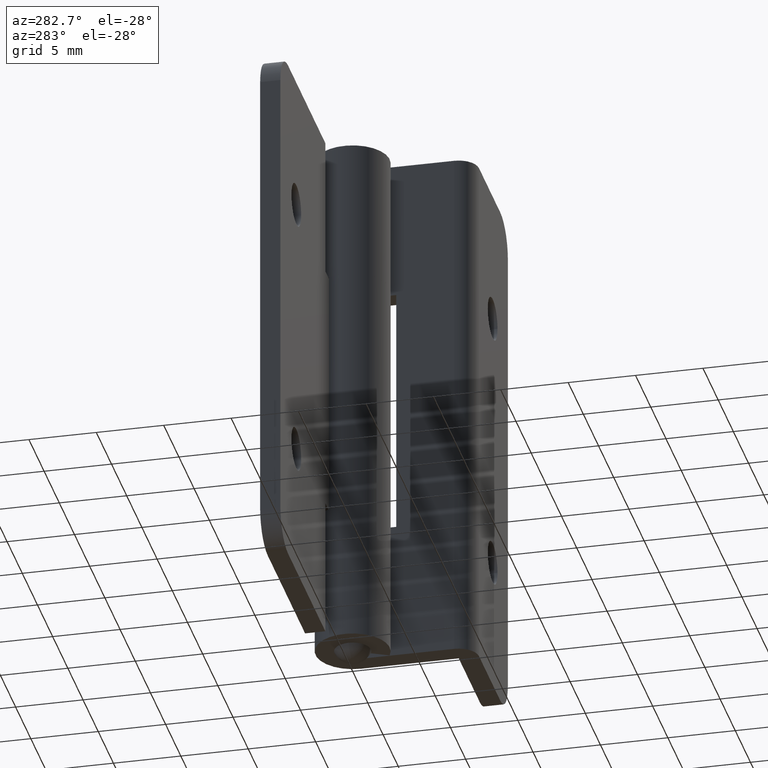
[diagram: clean part render]
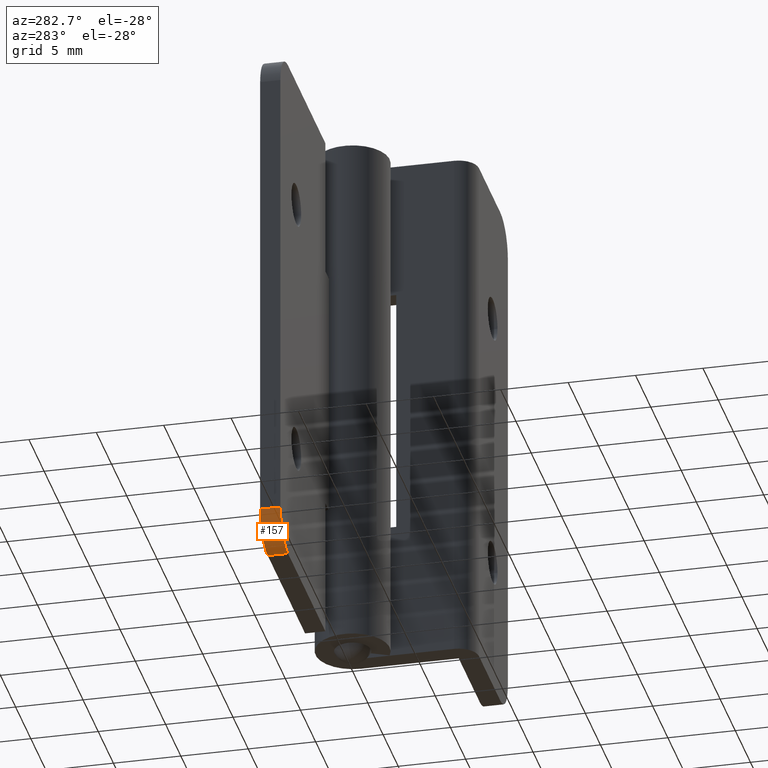
[diagram: same view with one face highlighted and labeled with its STEP entity id]
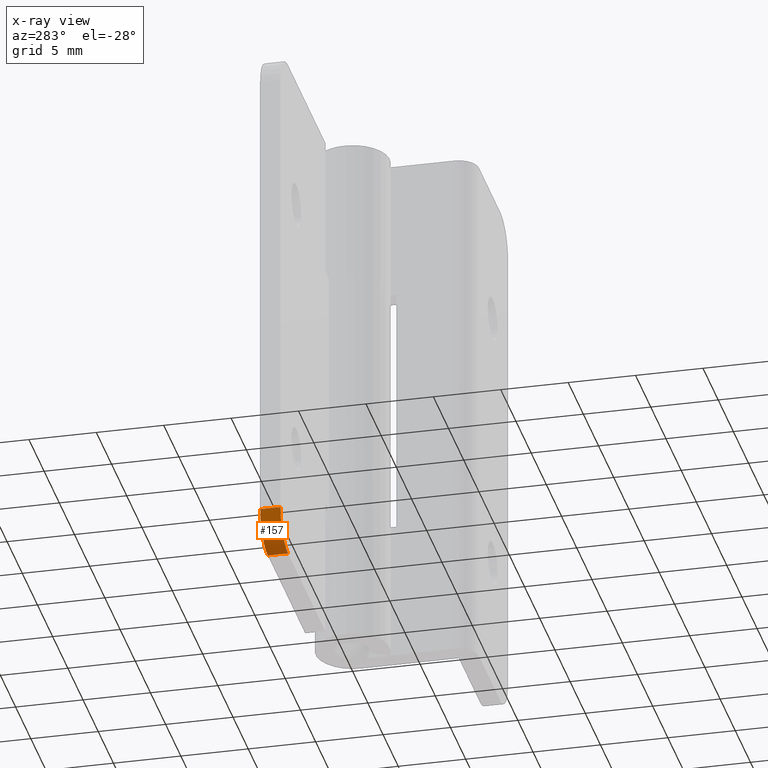
[diagram: x-ray of the same camera — body ghosted, the highlighted face saturated]
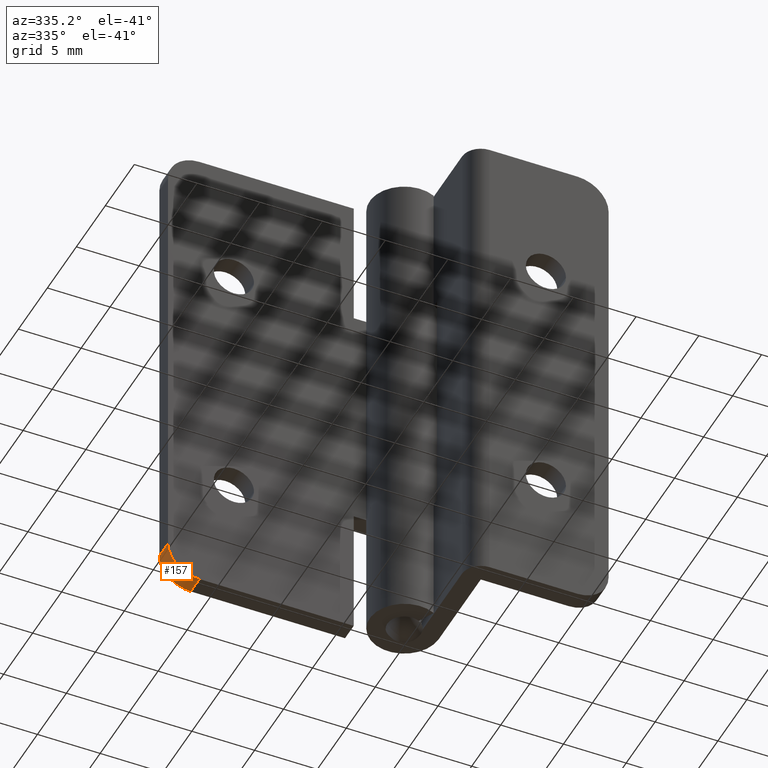
[diagram: same view with one face highlighted and labeled with its STEP entity id]
A machine part, auxiliary view. The second image highlights one B-rep face of the part: STEP entity #157.
The next image is the same camera in x-ray: the body ghosted, the highlighted face saturated — about 0% of this face is hidden behind the body in this view.
A second angle (auxiliary view) of the same face is appended — the face is thin or edge-on in the first view.
In plain terms, the highlighted cylindrical surface (edge-blend (fillet) strip) has radius 2.5 mm, axis along (-0, 1, 0).
Its self-contained STEP definition (entity closure, byte-faithful):
#157=ADVANCED_FACE('',(#281),#280,.T.);
#280=CYLINDRICAL_SURFACE('',#743,2.50000000000E+00);
#281=FACE_OUTER_BOUND('',#744,.T.);
#740=CARTESIAN_POINT('',(-1.57500000000E+01,0.00000000000E+00,2.70000000000E+01));
#741=DIRECTION('',(-0.00000000000E+00,-1.00000000000E+00,-0.00000000000E+00));
#742=DIRECTION('',(-0.00000000000E+00,0.00000000000E+00,-1.00000000000E+00));
#743=AXIS2_PLACEMENT_3D('',#740,#741,#742);
#744=EDGE_LOOP('',(#981,#982,#983,#984));
#981=ORIENTED_EDGE('',*,*,#1217,.F.);
#982=ORIENTED_EDGE('',*,*,#1218,.F.);
#983=ORIENTED_EDGE('',*,*,#1219,.F.);
#984=ORIENTED_EDGE('',*,*,#1220,.F.);
#1217=EDGE_CURVE('',#1422,#1423,#1424,.T.);
#1218=EDGE_CURVE('',#1430,#1422,#1431,.T.);
#1219=EDGE_CURVE('',#1437,#1430,#1438,.T.);
#1220=EDGE_CURVE('',#1423,#1437,#1444,.T.);
#1422=VERTEX_POINT('',#2220);
#1423=VERTEX_POINT('',#2221);
#1424=CIRCLE('',#2225,2.50000000000E+00);
#1430=VERTEX_POINT('',#2226);
#1431=LINE('',#2227,#2228);
#1437=VERTEX_POINT('',#2230);
#1438=CIRCLE('',#2234,2.50000000000E+00);
#1444=LINE('',#2235,#2236);
#2220=CARTESIAN_POINT('',(-1.82500000000E+01,-1.25000000000E+00,2.70000000000E+01));
#2221=CARTESIAN_POINT('',(-1.57500000000E+01,-1.25000000000E+00,2.95000000000E+01));
#2222=CARTESIAN_POINT('',(-1.57500000000E+01,-1.25000000000E+00,2.70000000000E+01));
#2223=DIRECTION('',(-0.00000000000E+00,1.00000000000E+00,0.00000000000E+00));
#2224=DIRECTION('',(-0.00000000000E+00,-0.00000000000E+00,1.00000000000E+00));
#2225=AXIS2_PLACEMENT_3D('',#2222,#2223,#2224);
#2226=CARTESIAN_POINT('',(-1.82500000000E+01,-2.74999800000E+00,2.70000000000E+01));
#2227=CARTESIAN_POINT('',(-1.82500000000E+01,-2.74999800000E+00,2.70000000000E+01));
#2228=VECTOR('',#2229,1.49999800000E+00);
#2229=DIRECTION('',(0.00000000000E+00,1.00000000000E+00,0.00000000000E+00));
#2230=CARTESIAN_POINT('',(-1.57500000000E+01,-2.74999800000E+00,2.95000000000E+01));
#2231=CARTESIAN_POINT('',(-1.57500000000E+01,-2.74999800000E+00,2.70000000000E+01));
#2232=DIRECTION('',(-0.00000000000E+00,-1.00000000000E+00,0.00000000000E+00));
#2233=DIRECTION('',(-0.00000000000E+00,0.00000000000E+00,-1.00000000000E+00));
#2234=AXIS2_PLACEMENT_3D('',#2231,#2232,#2233);
#2235=CARTESIAN_POINT('',(-1.57500000000E+01,-1.25000000000E+00,2.95000000000E+01));
#2236=VECTOR('',#2237,1.49999800000E+00);
#2237=DIRECTION('',(0.00000000000E+00,-1.00000000000E+00,0.00000000000E+00));